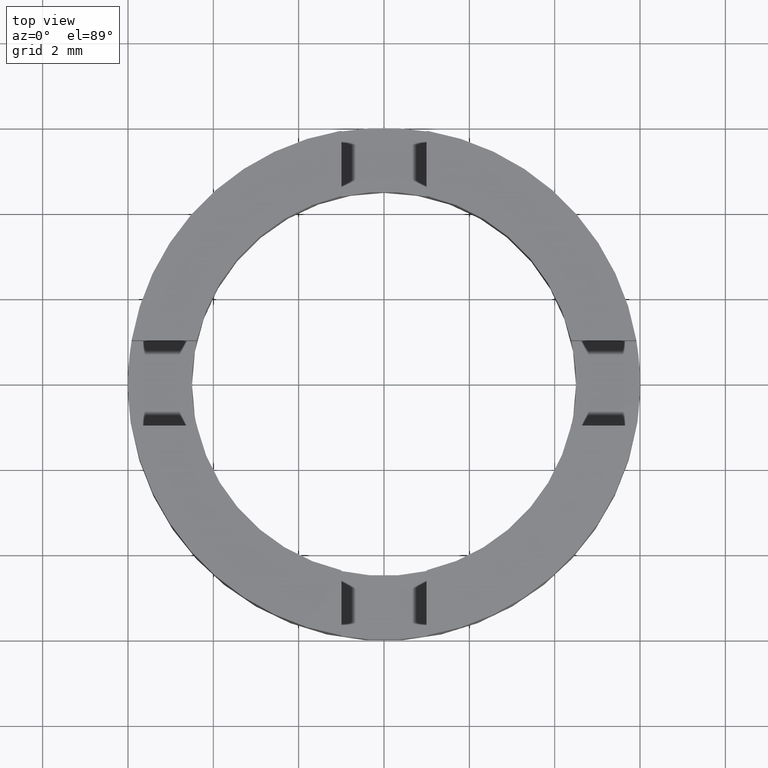
[diagram: clean part render]
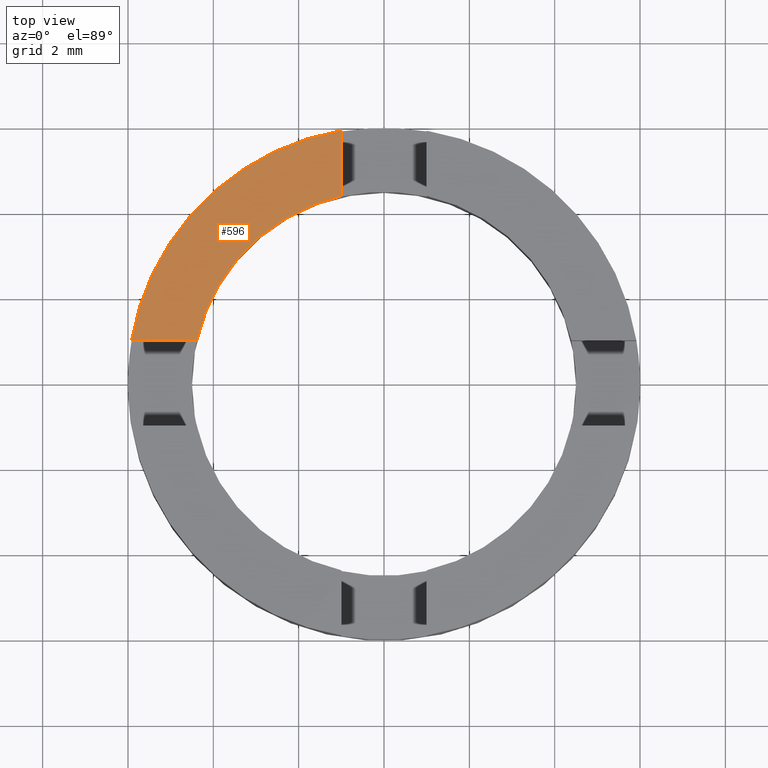
[diagram: same view with one face highlighted and labeled with its STEP entity id]
A machine part, top view. The second image highlights one B-rep face of the part: STEP entity #596.
In plain terms, the highlighted planar face has unit normal (0, 0, 1).
Its self-contained STEP definition (entity closure, byte-faithful):
#33 = CARTESIAN_POINT ( 'NONE',  ( 0.000000000000000000, 0.000000000000000000, 2.500000000000000000 ) ) ;
#50 = DIRECTION ( 'NONE',  ( 0.000000000000000000, 0.000000000000000000, 1.000000000000000000 ) ) ;
#98 = CIRCLE ( 'NONE', #568, 6.000000000000000888 ) ;
#119 = VECTOR ( 'NONE', #311, 1000.000000000000000 ) ;
#152 = VERTEX_POINT ( 'NONE', #541 ) ;
#199 = EDGE_LOOP ( 'NONE', ( #754, #338, #439, #660 ) ) ;
#262 = CARTESIAN_POINT ( 'NONE',  ( -0.9999999999999986677, 0.000000000000000000, 2.500000000000000000 ) ) ;
#277 = PLANE ( 'NONE',  #450 ) ;
#311 = DIRECTION ( 'NONE',  ( 0.000000000000000000, 1.000000000000000000, -0.000000000000000000 ) ) ;
#334 = CARTESIAN_POINT ( 'NONE',  ( -0.9999999999999986677, 4.387482193696060406, 2.500000000000000000 ) ) ;
#338 = ORIENTED_EDGE ( 'NONE', *, *, #511, .T. ) ;
#358 = LINE ( 'NONE', #262, #119 ) ;
#369 = VECTOR ( 'NONE', #558, 1000.000000000000000 ) ;
#380 = VERTEX_POINT ( 'NONE', #334 ) ;
#429 = EDGE_CURVE ( 'NONE', #152, #732, #98, .T. ) ;
#439 = ORIENTED_EDGE ( 'NONE', *, *, #429, .T. ) ;
#450 = AXIS2_PLACEMENT_3D ( 'NONE', #33, #677, #719 ) ;
#511 = EDGE_CURVE ( 'NONE', #380, #152, #358, .T. ) ;
#521 = EDGE_CURVE ( 'NONE', #732, #674, #642, .T. ) ;
#528 = AXIS2_PLACEMENT_3D ( 'NONE', #536, #581, #713 ) ;
#536 = CARTESIAN_POINT ( 'NONE',  ( 0.000000000000000000, 0.000000000000000000, 2.500000000000000000 ) ) ;
#541 = CARTESIAN_POINT ( 'NONE',  ( -0.9999999999999986677, 5.916079783099617906, 2.500000000000000000 ) ) ;
#558 = DIRECTION ( 'NONE',  ( 1.000000000000000000, -3.758567531283081775E-15, 0.000000000000000000 ) ) ;
#565 = CARTESIAN_POINT ( 'NONE',  ( -4.387482193696056854, 1.000000000000015321, 2.500000000000000000 ) ) ;
#568 = AXIS2_PLACEMENT_3D ( 'NONE', #694, #50, #695 ) ;
#581 = DIRECTION ( 'NONE',  ( 0.000000000000000000, 0.000000000000000000, 1.000000000000000000 ) ) ;
#596 = ADVANCED_FACE ( 'NONE', ( #629 ), #277, .T. ) ;
#629 = FACE_OUTER_BOUND ( 'NONE', #199, .T. ) ;
#642 = LINE ( 'NONE', #764, #369 ) ;
#655 = CIRCLE ( 'NONE', #528, 4.500000000000000000 ) ;
#660 = ORIENTED_EDGE ( 'NONE', *, *, #521, .T. ) ;
#674 = VERTEX_POINT ( 'NONE', #565 ) ;
#675 = EDGE_CURVE ( 'NONE', #380, #674, #655, .T. ) ;
#677 = DIRECTION ( 'NONE',  ( 0.000000000000000000, 0.000000000000000000, 1.000000000000000000 ) ) ;
#694 = CARTESIAN_POINT ( 'NONE',  ( 0.000000000000000000, 0.000000000000000000, 2.500000000000000000 ) ) ;
#695 = DIRECTION ( 'NONE',  ( 1.000000000000000000, 0.000000000000000000, 0.000000000000000000 ) ) ;
#713 = DIRECTION ( 'NONE',  ( 1.000000000000000000, 0.000000000000000000, 0.000000000000000000 ) ) ;
#719 = DIRECTION ( 'NONE',  ( 1.000000000000000000, 0.000000000000000000, -0.000000000000000000 ) ) ;
#732 = VERTEX_POINT ( 'NONE', #783 ) ;
#754 = ORIENTED_EDGE ( 'NONE', *, *, #675, .F. ) ;
#764 = CARTESIAN_POINT ( 'NONE',  ( 3.758567531283077831E-15, 0.9999999999999988898, 2.500000000000000000 ) ) ;
#783 = CARTESIAN_POINT ( 'NONE',  ( -5.916079783099614353, 1.000000000000021316, 2.500000000000000000 ) ) ;